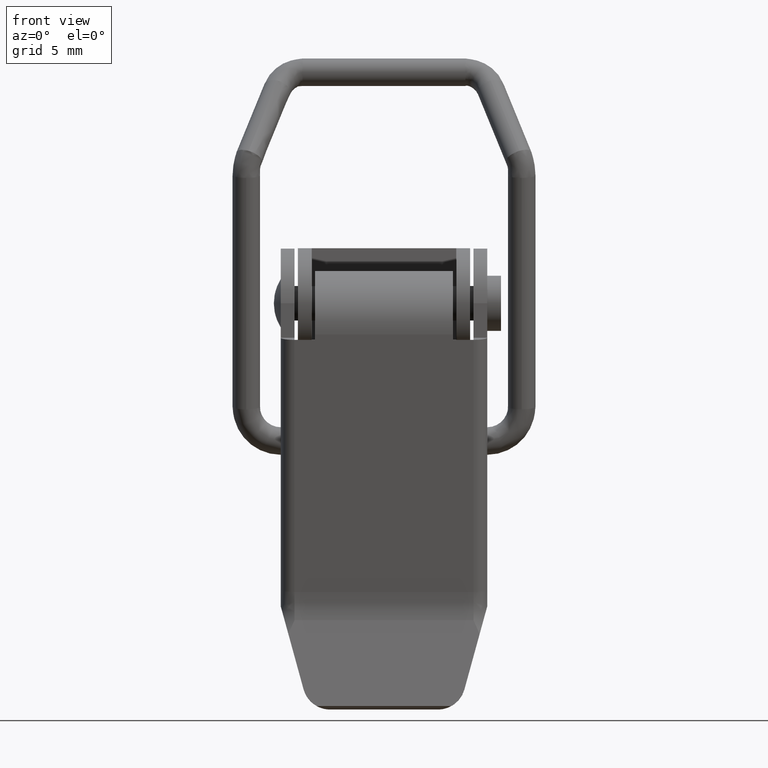
[diagram: clean part render]
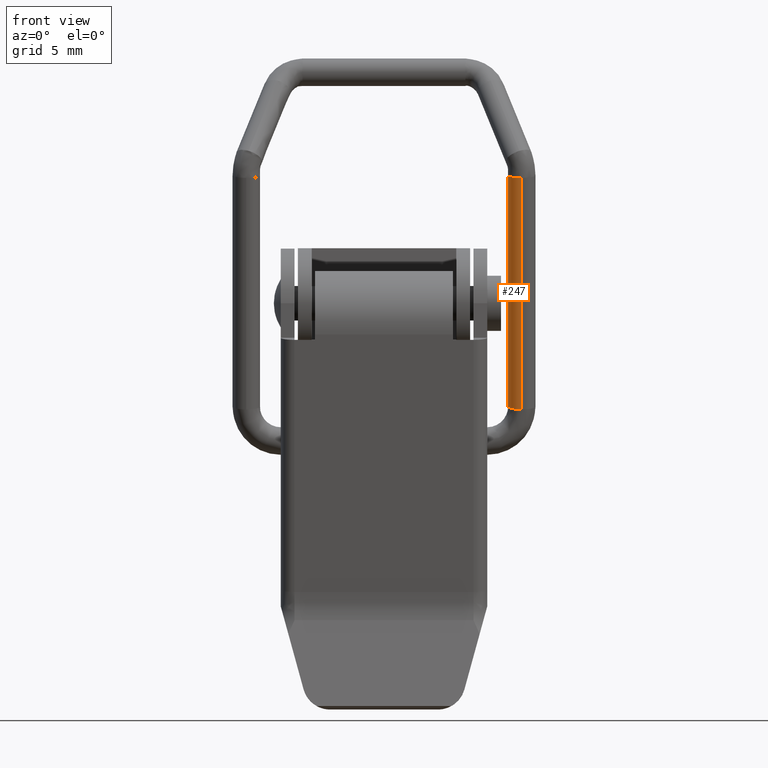
[diagram: same view with one face highlighted and labeled with its STEP entity id]
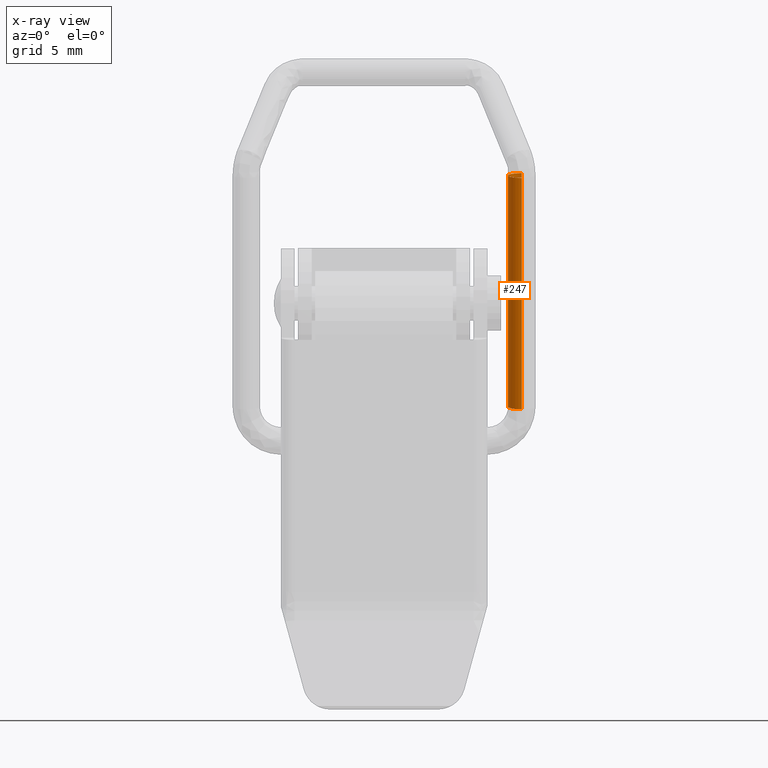
[diagram: x-ray of the same camera — body ghosted, the highlighted face saturated]
A machine part, front view. The second image highlights one B-rep face of the part: STEP entity #247.
The next image is the same camera in x-ray: the body ghosted, the highlighted face saturated — about 0% of this face is hidden behind the body in this view.
In plain terms, the highlighted cylindrical surface (edge-blend (fillet) strip) has radius 1 mm, axis along (-0, 0.2011, -0.9796).
Its self-contained STEP definition (entity closure, byte-faithful):
#247=ADVANCED_FACE('',(#1253),#1252,.T.);
#1252=CYLINDRICAL_SURFACE('',#3185,1.00000000000E+00);
#1253=FACE_OUTER_BOUND('',#3186,.T.);
#3182=CARTESIAN_POINT('',(9.99999999992E+00,-1.51337899287E+00,-2.42813365698E+01));
#3183=DIRECTION('',(-1.50318359025E-12,2.01064153610E-01,-9.79578075568E-01));
#3184=DIRECTION('',(2.46239156531E-12,9.79578075568E-01,2.01064153610E-01));
#3185=AXIS2_PLACEMENT_3D('',#3182,#3183,#3184);
#3186=EDGE_LOOP('',(#3807,#3808,#3809,#3810,#3811,#3812));
#3807=ORIENTED_EDGE('',*,*,#4113,.T.);
#3808=ORIENTED_EDGE('',*,*,#4122,.T.);
#3809=ORIENTED_EDGE('',*,*,#4131,.T.);
#3810=ORIENTED_EDGE('',*,*,#4110,.F.);
#3811=ORIENTED_EDGE('',*,*,#4108,.F.);
#3812=ORIENTED_EDGE('',*,*,#4132,.F.);
#4108=EDGE_CURVE('',#5839,#5846,#5847,.T.);
#4110=EDGE_CURVE('',#5846,#5859,#5860,.T.);
#4113=EDGE_CURVE('',#5878,#5879,#5880,.T.);
#4122=EDGE_CURVE('',#5879,#5933,#5940,.T.);
#4131=EDGE_CURVE('',#5933,#5859,#5998,.T.);
#4132=EDGE_CURVE('',#5878,#5839,#6004,.T.);
#5839=VERTEX_POINT('',#7245);
#5846=VERTEX_POINT('',#7252);
#5847=(BOUNDED_CURVE() B_SPLINE_CURVE(3,(#7253,#7254,#7255,#7256,#7257,#7258,#7259,#7260),.UNSPECIFIED.,.F.,.F.) B_SPLINE_CURVE_WITH_KNOTS((4,2,2,4),(-7.80830985740E-01,-7.50000000000E-01,-6.25000000000E-01,-5.00000371072E-01),.UNSPECIFIED.) CURVE() GEOMETRIC_REPRESENTATION_ITEM() RATIONAL_B_SPLINE_CURVE((1.00000000000E+00,1.00000000000E+00,1.00000000000E+00,1.00000000000E+00,1.00000000000E+00,1.00000000000E+00,1.00000000000E+00,1.00000000000E+00)) REPRESENTATION_ITEM('') );
#5859=VERTEX_POINT('',#7267);
#5860=(BOUNDED_CURVE() B_SPLINE_CURVE(3,(#7268,#7269,#7270,#7271,#7272,#7273),.UNSPECIFIED.,.F.,.F.) B_SPLINE_CURVE_WITH_KNOTS((4,2,4),(-5.00000371072E-01,-3.75000000000E-01,-2.82248076010E-01),.UNSPECIFIED.) CURVE() GEOMETRIC_REPRESENTATION_ITEM() RATIONAL_B_SPLINE_CURVE((1.00000000000E+00,1.00000000000E+00,1.00000000000E+00,1.00000000000E+00,1.00000000000E+00,1.00000000000E+00)) REPRESENTATION_ITEM('') );
#5878=VERTEX_POINT('',#7292);
#5879=VERTEX_POINT('',#7293);
#5880=(BOUNDED_CURVE() B_SPLINE_CURVE(3,(#7294,#7295,#7296,#7297,#7298,#7299,#7300),.UNSPECIFIED.,.F.,.F.) B_SPLINE_CURVE_WITH_KNOTS((4,1,1,1,4),(2.17122168740E-01,3.06668585545E-01,4.10647454523E-01,4.86430551181E-01,4.97391948250E-01),.UNSPECIFIED.) CURVE() GEOMETRIC_REPRESENTATION_ITEM() RATIONAL_B_SPLINE_CURVE((1.00000000000E+00,1.00000000000E+00,1.00000000000E+00,1.00000000000E+00,1.00000000000E+00,1.00000000000E+00,1.00000000000E+00)) REPRESENTATION_ITEM('') );
#5933=VERTEX_POINT('',#7374);
#5940=(BOUNDED_CURVE() B_SPLINE_CURVE(3,(#7382,#7383,#7384,#7385,#7386,#7387,#7388,#7389),.UNSPECIFIED.,.F.,.F.) B_SPLINE_CURVE_WITH_KNOTS((4,1,1,1,1,4),(4.97391948250E-01,5.44596309201E-01,5.84962663000E-01,6.07403381718E-01,6.68963245011E-01,7.17333909481E-01),.UNSPECIFIED.) CURVE() GEOMETRIC_REPRESENTATION_ITEM() RATIONAL_B_SPLINE_CURVE((1.00000000000E+00,1.00000000000E+00,1.00000000000E+00,1.00000000000E+00,1.00000000000E+00,1.00000000000E+00,1.00000000000E+00,1.00000000000E+00)) REPRESENTATION_ITEM('') );
#5998=(BOUNDED_CURVE() B_SPLINE_CURVE(1,(#7446,#7447),.UNSPECIFIED.,.F.,.F.) B_SPLINE_CURVE_WITH_KNOTS((2,2),(8.64201709621E-02,9.16657634838E-01),.UNSPECIFIED.) CURVE() GEOMETRIC_REPRESENTATION_ITEM() RATIONAL_B_SPLINE_CURVE((1.00000000000E+00,1.00000000000E+00)) REPRESENTATION_ITEM('') );
#6004=(BOUNDED_CURVE() B_SPLINE_CURVE(1,(#7448,#7449),.UNSPECIFIED.,.F.,.F.) B_SPLINE_CURVE_WITH_KNOTS((2,2),(8.34057603780E-02,9.16662034317E-01),.UNSPECIFIED.) CURVE() GEOMETRIC_REPRESENTATION_ITEM() RATIONAL_B_SPLINE_CURVE((7.50000000000E-01,7.50000000000E-01)) REPRESENTATION_ITEM('') );
#7245=CARTESIAN_POINT('',(9.99999999992E+00,-2.49295724967E+00,-2.44823998404E+01));
#7252=CARTESIAN_POINT('',(9.02043987061E+00,-1.31633901521E+00,-2.42408742383E+01));
#7253=CARTESIAN_POINT('',(9.99999999992E+00,-2.49295724967E+00,-2.44823998404E+01));
#7254=CARTESIAN_POINT('',(9.92657369714E+00,-2.49205261236E+00,-2.44823084777E+01));
#7255=CARTESIAN_POINT('',(9.86209853517E+00,-2.48563957980E+00,-2.44809915587E+01));
#7256=CARTESIAN_POINT('',(9.54239802929E+00,-2.42133058637E+00,-2.44677856507E+01));
#7257=CARTESIAN_POINT('',(9.30920804793E+00,-2.26665042320E+00,-2.44360218980E+01));
#7258=CARTESIAN_POINT('',(9.02101089059E+00,-1.83843820534E+00,-2.43480879865E+01));
#7259=CARTESIAN_POINT('',(8.96777838449E+00,-1.56754300986E+00,-2.42924593101E+01));
#7260=CARTESIAN_POINT('',(9.02044018327E+00,-1.31633752376E+00,-2.42408739320E+01));
#7267=CARTESIAN_POINT('',(1.00000021196E+01,-5.34375847636E-01,-2.40802969996E+01));
#7268=CARTESIAN_POINT('',(9.02044018327E+00,-1.31633752376E+00,-2.42408739320E+01));
#7269=CARTESIAN_POINT('',(9.07310229471E+00,-1.06513054622E+00,-2.41892882477E+01));
#7270=CARTESIAN_POINT('',(9.23101014400E+00,-8.36707049963E-01,-2.41423811718E+01));
#7271=CARTESIAN_POINT('',(9.61176911980E+00,-5.90816088190E-01,-2.40918871099E+01));
#7272=CARTESIAN_POINT('',(9.80587404151E+00,-5.35085318631E-01,-2.40804427071E+01));
#7273=CARTESIAN_POINT('',(1.00000021196E+01,-5.34375847636E-01,-2.40802969996E+01));
#7292=CARTESIAN_POINT('',(9.99990846103E+00,-5.94385013853E+00,-7.66976032349E+00));
#7293=CARTESIAN_POINT('',(9.01920021724E+00,-4.76574067822E+00,-7.46682333642E+00));
#7294=CARTESIAN_POINT('',(9.99993897404E+00,-5.94385017664E+00,-7.66976034277E+00));
#7295=CARTESIAN_POINT('',(9.81267324086E+00,-5.94362489493E+00,-7.66964345249E+00));
#7296=CARTESIAN_POINT('',(9.40539887418E+00,-5.82902812892E+00,-7.65056699750E+00));
#7297=CARTESIAN_POINT('',(9.02907185307E+00,-5.36581676561E+00,-7.57089529169E+00));
#7298=CARTESIAN_POINT('',(8.98545870729E+00,-4.96395980689E+00,-7.50121282775E+00));
#7299=CARTESIAN_POINT('',(9.01473395055E+00,-4.78783995694E+00,-7.47065595758E+00));
#7300=CARTESIAN_POINT('',(9.01920021724E+00,-4.76574067822E+00,-7.46682333642E+00));
#7374=CARTESIAN_POINT('',(1.00000000124E+01,-3.97223872477E+00,-7.32845982960E+00));
#7382=CARTESIAN_POINT('',(9.01920021724E+00,-4.76574067822E+00,-7.46682333642E+00));
#7383=CARTESIAN_POINT('',(9.03843382981E+00,-4.67057193991E+00,-7.45031846654E+00));
#7384=CARTESIAN_POINT('',(9.10050016635E+00,-4.49938630050E+00,-7.42068607525E+00));
#7385=CARTESIAN_POINT('',(9.23399670287E+00,-4.31401335188E+00,-7.38939613336E+00));
#7386=CARTESIAN_POINT('',(9.42144108562E+00,-4.13859078939E+00,-7.36036714750E+00));
#7387=CARTESIAN_POINT('',(9.66920399234E+00,-4.00632831426E+00,-7.33598139980E+00));
#7388=CARTESIAN_POINT('',(9.89890000049E+00,-3.97219437613E+00,-7.32888994736E+00));
#7389=CARTESIAN_POINT('',(1.00000000124E+01,-3.97223872477E+00,-7.32845982960E+00));
#7446=CARTESIAN_POINT('',(9.99999999995E+00,-3.97221005738E+00,-7.32845391457E+00));
#7447=CARTESIAN_POINT('',(9.99999999993E+00,-5.33819318772E-01,-2.40801827648E+01));
#7448=CARTESIAN_POINT('',(9.99999999995E+00,-5.94385025300E+00,-7.66976035944E+00));
#7449=CARTESIAN_POINT('',(9.99999999992E+00,-2.49295724967E+00,-2.44823998404E+01));